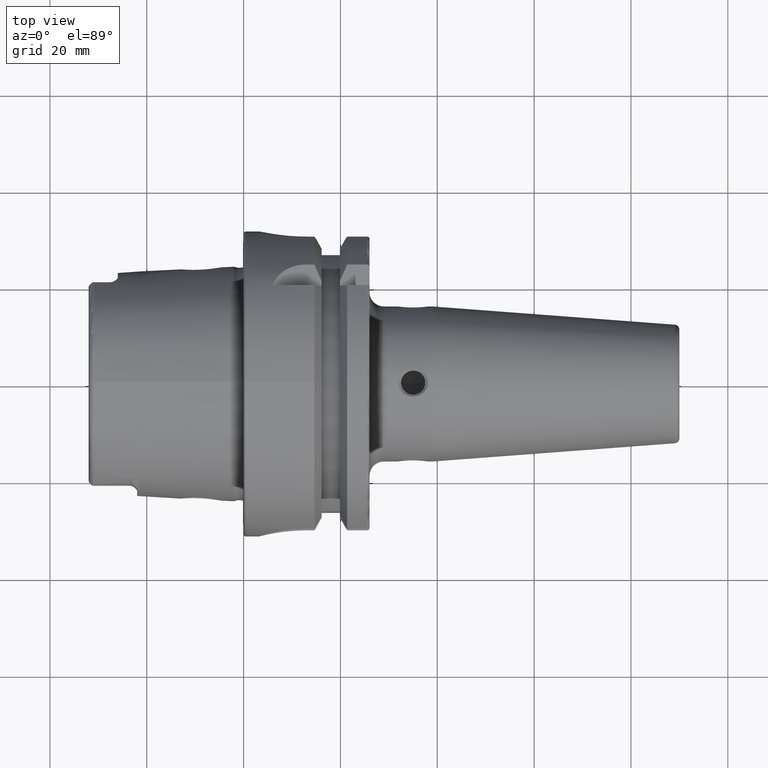
[diagram: clean part render]
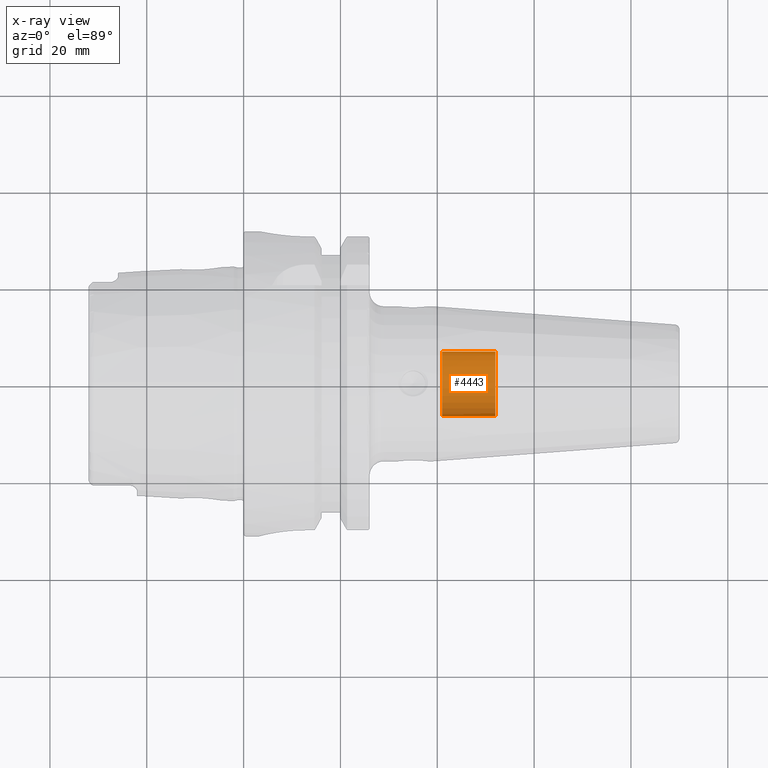
[diagram: x-ray — body ghosted, one internal face saturated and labeled with its STEP entity id]
A machine part, top view, then the same camera in x-ray: the body is ghosted and one INTERNAL B-rep face — a face not visible from any outside direction — is saturated and labeled: STEP entity #4443.
In plain terms, the highlighted cylindrical surface (edge-blend (fillet) strip) has radius 6.6548 mm, axis along (-1, 0, 0).
Its self-contained STEP definition (entity closure, byte-faithful):
#1040=CARTESIAN_POINT('',(1.614E0,0.E0,0.E0));
#1041=DIRECTION('',(-1.E0,0.E0,0.E0));
#1042=DIRECTION('',(0.E0,1.E0,0.E0));
#1043=AXIS2_PLACEMENT_3D('',#1040,#1041,#1042);
#1055=DIRECTION('',(-1.E0,0.E0,0.E0));
#1056=VECTOR('',#1055,4.33E-1);
#1057=CARTESIAN_POINT('',(2.047E0,-2.62E-1,0.E0));
#1058=LINE('',#1057,#1056);
#1064=CARTESIAN_POINT('',(2.047E0,0.E0,0.E0));
#1065=DIRECTION('',(-1.E0,0.E0,0.E0));
#1066=DIRECTION('',(0.E0,1.E0,0.E0));
#1067=AXIS2_PLACEMENT_3D('',#1064,#1065,#1066);
#1069=DIRECTION('',(-1.E0,0.E0,0.E0));
#1070=VECTOR('',#1069,4.33E-1);
#1071=CARTESIAN_POINT('',(2.047E0,2.62E-1,0.E0));
#1072=LINE('',#1071,#1070);
#3134=CARTESIAN_POINT('',(2.047E0,-2.62E-1,0.E0));
#3135=CARTESIAN_POINT('',(2.047E0,2.62E-1,0.E0));
#3136=VERTEX_POINT('',#3134);
#3137=VERTEX_POINT('',#3135);
#3138=CARTESIAN_POINT('',(1.614E0,-2.62E-1,0.E0));
#3139=CARTESIAN_POINT('',(1.614E0,2.62E-1,0.E0));
#3140=VERTEX_POINT('',#3138);
#3141=VERTEX_POINT('',#3139);
#4432=CARTESIAN_POINT('',(2.047E0,0.E0,0.E0));
#4433=DIRECTION('',(-1.E0,0.E0,0.E0));
#4434=DIRECTION('',(0.E0,-1.E0,0.E0));
#4435=AXIS2_PLACEMENT_3D('',#4432,#4433,#4434);
#4436=CYLINDRICAL_SURFACE('',#4435,2.62E-1);
#4437=ORIENTED_EDGE('',*,*,#4421,.T.);
#4438=ORIENTED_EDGE('',*,*,#4410,.T.);
#4439=ORIENTED_EDGE('',*,*,#4390,.F.);
#4440=ORIENTED_EDGE('',*,*,#4407,.F.);
#4441=EDGE_LOOP('',(#4437,#4438,#4439,#4440));
#4442=FACE_OUTER_BOUND('',#4441,.F.);
#4443=ADVANCED_FACE('',(#4442),#4436,.F.);
#1044=CIRCLE('',#1043,2.62E-1);
#1068=CIRCLE('',#1067,2.62E-1);
#4390=EDGE_CURVE('',#3141,#3140,#1044,.T.);
#4407=EDGE_CURVE('',#3137,#3141,#1072,.T.);
#4410=EDGE_CURVE('',#3136,#3140,#1058,.T.);
#4421=EDGE_CURVE('',#3137,#3136,#1068,.T.);